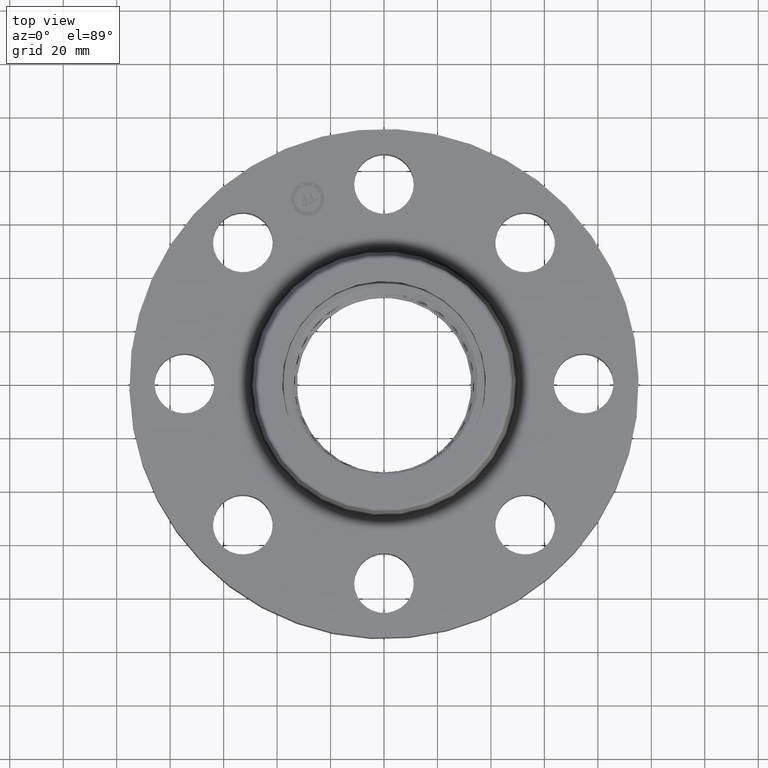
[diagram: clean part render]
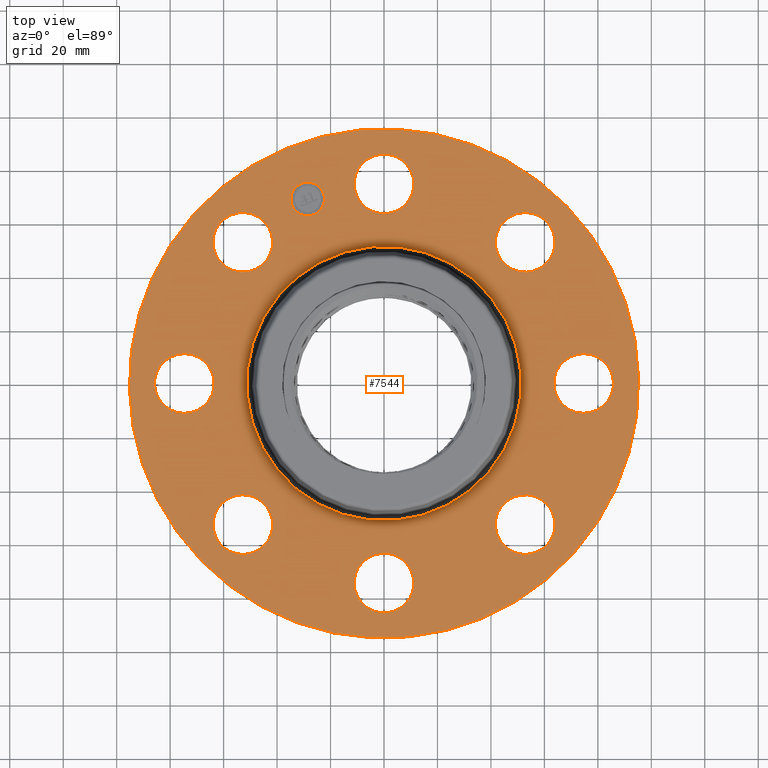
[diagram: same view with one face highlighted and labeled with its STEP entity id]
A machine part, top view. The second image highlights one B-rep face of the part: STEP entity #7544.
In plain terms, the highlighted planar face has unit normal (0, 0, -1).
Its self-contained STEP definition (entity closure, byte-faithful):
#433=AXIS2_PLACEMENT_3D('Circle Axis2P3D',#431,#432,$) ;
#451=AXIS2_PLACEMENT_3D('Circle Axis2P3D',#449,#450,$) ;
#498=AXIS2_PLACEMENT_3D('Circle Axis2P3D',#496,#497,$) ;
#516=AXIS2_PLACEMENT_3D('Circle Axis2P3D',#514,#515,$) ;
#563=AXIS2_PLACEMENT_3D('Circle Axis2P3D',#561,#562,$) ;
#581=AXIS2_PLACEMENT_3D('Circle Axis2P3D',#579,#580,$) ;
#628=AXIS2_PLACEMENT_3D('Circle Axis2P3D',#626,#627,$) ;
#646=AXIS2_PLACEMENT_3D('Circle Axis2P3D',#644,#645,$) ;
#693=AXIS2_PLACEMENT_3D('Circle Axis2P3D',#691,#692,$) ;
#711=AXIS2_PLACEMENT_3D('Circle Axis2P3D',#709,#710,$) ;
#758=AXIS2_PLACEMENT_3D('Circle Axis2P3D',#756,#757,$) ;
#776=AXIS2_PLACEMENT_3D('Circle Axis2P3D',#774,#775,$) ;
#823=AXIS2_PLACEMENT_3D('Circle Axis2P3D',#821,#822,$) ;
#841=AXIS2_PLACEMENT_3D('Circle Axis2P3D',#839,#840,$) ;
#1130=AXIS2_PLACEMENT_3D('Circle Axis2P3D',#1128,#1129,$) ;
#1156=AXIS2_PLACEMENT_3D('Circle Axis2P3D',#1154,#1155,$) ;
#1180=AXIS2_PLACEMENT_3D('Circle Axis2P3D',#1178,#1179,$) ;
#1199=AXIS2_PLACEMENT_3D('Circle Axis2P3D',#1197,#1198,$) ;
#1230=AXIS2_PLACEMENT_3D('Circle Axis2P3D',#1228,#1229,$) ;
#1243=AXIS2_PLACEMENT_3D('Circle Axis2P3D',#1241,#1242,$) ;
#7484=AXIS2_PLACEMENT_3D('Plane Axis2P3D',#7481,#7482,#7483) ;
#7528=AXIS2_PLACEMENT_3D('Circle Axis2P3D',#7526,#7527,$) ;
#7537=AXIS2_PLACEMENT_3D('Circle Axis2P3D',#7535,#7536,$) ;
#407=CARTESIAN_POINT('Vertex',(2.72905276303,-0.386136327233,1.12)) ;
#428=CARTESIAN_POINT('Vertex',(3.150947237,0.386136327233,1.12)) ;
#431=CARTESIAN_POINT('Axis2P3D Location',(2.94000000001,-3.79459389627E-016,1.12)) ;
#449=CARTESIAN_POINT('Axis2P3D Location',(2.94000000001,-3.79459389627E-016,1.12)) ;
#472=CARTESIAN_POINT('Vertex',(-2.2027713304,-1.6566920995,1.12)) ;
#493=CARTESIAN_POINT('Vertex',(-1.95501654299,-2.50109577389,1.12)) ;
#496=CARTESIAN_POINT('Axis2P3D Location',(-2.0788939367,-2.0788939367,1.12)) ;
#514=CARTESIAN_POINT('Axis2P3D Location',(-2.0788939367,-2.0788939367,1.12)) ;
#537=CARTESIAN_POINT('Vertex',(-2.72905276303,0.386136327233,1.12)) ;
#558=CARTESIAN_POINT('Vertex',(-3.150947237,-0.386136327233,1.12)) ;
#561=CARTESIAN_POINT('Axis2P3D Location',(-2.94000000001,-5.40069238426E-016,1.12)) ;
#579=CARTESIAN_POINT('Axis2P3D Location',(-2.94000000001,-5.40069238426E-016,1.12)) ;
#602=CARTESIAN_POINT('Vertex',(2.2027713304,1.6566920995,1.12)) ;
#623=CARTESIAN_POINT('Vertex',(1.95501654299,2.50109577389,1.12)) ;
#626=CARTESIAN_POINT('Axis2P3D Location',(2.0788939367,2.0788939367,1.12)) ;
#644=CARTESIAN_POINT('Axis2P3D Location',(2.0788939367,2.0788939367,1.12)) ;
#667=CARTESIAN_POINT('Vertex',(1.6566920995,-2.2027713304,1.12)) ;
#688=CARTESIAN_POINT('Vertex',(2.50109577389,-1.95501654299,1.12)) ;
#691=CARTESIAN_POINT('Axis2P3D Location',(2.0788939367,-2.0788939367,1.12)) ;
#709=CARTESIAN_POINT('Axis2P3D Location',(2.0788939367,-2.0788939367,1.12)) ;
#732=CARTESIAN_POINT('Vertex',(-1.6566920995,2.2027713304,1.12)) ;
#753=CARTESIAN_POINT('Vertex',(-2.50109577389,1.95501654299,1.12)) ;
#756=CARTESIAN_POINT('Axis2P3D Location',(-2.0788939367,2.0788939367,1.12)) ;
#774=CARTESIAN_POINT('Axis2P3D Location',(-2.0788939367,2.0788939367,1.12)) ;
#797=CARTESIAN_POINT('Vertex',(-0.386136327233,-2.72905276303,1.12)) ;
#818=CARTESIAN_POINT('Vertex',(0.386136327233,-3.150947237,1.12)) ;
#821=CARTESIAN_POINT('Axis2P3D Location',(3.60046158951E-016,-2.94000000001,1.12)) ;
#839=CARTESIAN_POINT('Axis2P3D Location',(3.60046158951E-016,-2.94000000001,1.12)) ;
#1128=CARTESIAN_POINT('Axis2P3D Location',(0.,0.,1.12)) ;
#1132=CARTESIAN_POINT('Vertex',(-0.968605458611,-1.77302039917,1.12)) ;
#1134=CARTESIAN_POINT('Vertex',(0.968605458611,1.77302039917,1.12)) ;
#1154=CARTESIAN_POINT('Axis2P3D Location',(0.,0.,1.12)) ;
#1175=CARTESIAN_POINT('Vertex',(1.79784576977,3.2909346071,1.12)) ;
#1178=CARTESIAN_POINT('Axis2P3D Location',(0.,0.,1.12)) ;
#1182=CARTESIAN_POINT('Vertex',(-1.79784576977,-3.2909346071,1.12)) ;
#1197=CARTESIAN_POINT('Axis2P3D Location',(0.,0.,1.12)) ;
#1218=CARTESIAN_POINT('Vertex',(0.386136327233,2.72905276303,1.12)) ;
#1225=CARTESIAN_POINT('Vertex',(-0.386136327233,3.150947237,1.12)) ;
#1228=CARTESIAN_POINT('Axis2P3D Location',(0.,2.94000000001,1.12)) ;
#1241=CARTESIAN_POINT('Axis2P3D Location',(0.,2.94000000001,1.12)) ;
#7481=CARTESIAN_POINT('Axis2P3D Location',(0.,3.75000000001,1.12)) ;
#7526=CARTESIAN_POINT('Axis2P3D Location',(-1.12508929116,2.71620582559,1.12)) ;
#7530=CARTESIAN_POINT('Vertex',(-1.35374947546,2.62149167608,1.12)) ;
#7532=CARTESIAN_POINT('Vertex',(-0.89642910686,2.8109199751,1.12)) ;
#7535=CARTESIAN_POINT('Axis2P3D Location',(-1.12508929116,2.71620582559,1.12)) ;
#432=DIRECTION('Axis2P3D Direction',(0.,-0.,-0.0393700787402)) ;
#450=DIRECTION('Axis2P3D Direction',(0.,-0.,-0.0393700787402)) ;
#497=DIRECTION('Axis2P3D Direction',(0.,0.,-0.0393700787402)) ;
#515=DIRECTION('Axis2P3D Direction',(0.,0.,-0.0393700787402)) ;
#562=DIRECTION('Axis2P3D Direction',(0.,0.,-0.0393700787402)) ;
#580=DIRECTION('Axis2P3D Direction',(0.,0.,-0.0393700787402)) ;
#627=DIRECTION('Axis2P3D Direction',(0.,-0.,-0.0393700787402)) ;
#645=DIRECTION('Axis2P3D Direction',(0.,-0.,-0.0393700787402)) ;
#692=DIRECTION('Axis2P3D Direction',(-0.,0.,-0.0393700787402)) ;
#710=DIRECTION('Axis2P3D Direction',(-0.,0.,-0.0393700787402)) ;
#757=DIRECTION('Axis2P3D Direction',(0.,0.,-0.0393700787402)) ;
#775=DIRECTION('Axis2P3D Direction',(0.,0.,-0.0393700787402)) ;
#822=DIRECTION('Axis2P3D Direction',(-0.,0.,-0.0393700787402)) ;
#840=DIRECTION('Axis2P3D Direction',(-0.,0.,-0.0393700787402)) ;
#1129=DIRECTION('Axis2P3D Direction',(0.,0.,-0.0393700787402)) ;
#1155=DIRECTION('Axis2P3D Direction',(0.,0.,-0.0393700787402)) ;
#1179=DIRECTION('Axis2P3D Direction',(0.,0.,-0.0393700787402)) ;
#1198=DIRECTION('Axis2P3D Direction',(0.,0.,-0.0393700787402)) ;
#1229=DIRECTION('Axis2P3D Direction',(0.,-0.,-0.0393700787402)) ;
#1242=DIRECTION('Axis2P3D Direction',(0.,-0.,-0.0393700787402)) ;
#7482=DIRECTION('Axis2P3D Direction',(0.,0.,-0.0393700787402)) ;
#7483=DIRECTION('Axis2P3D XDirection',(0.0393700787402,0.,0.)) ;
#7527=DIRECTION('Axis2P3D Direction',(0.,0.,-0.0393700787402)) ;
#7536=DIRECTION('Axis2P3D Direction',(0.,0.,-0.0393700787402)) ;
#7487=ORIENTED_EDGE('',*,*,#1184,.F.) ;
#7488=ORIENTED_EDGE('',*,*,#1201,.F.) ;
#7491=ORIENTED_EDGE('',*,*,#1245,.T.) ;
#7492=ORIENTED_EDGE('',*,*,#1232,.T.) ;
#7495=ORIENTED_EDGE('',*,*,#1136,.T.) ;
#7496=ORIENTED_EDGE('',*,*,#1158,.T.) ;
#7499=ORIENTED_EDGE('',*,*,#630,.T.) ;
#7500=ORIENTED_EDGE('',*,*,#648,.T.) ;
#7503=ORIENTED_EDGE('',*,*,#435,.T.) ;
#7504=ORIENTED_EDGE('',*,*,#453,.T.) ;
#7507=ORIENTED_EDGE('',*,*,#695,.T.) ;
#7508=ORIENTED_EDGE('',*,*,#713,.T.) ;
#7511=ORIENTED_EDGE('',*,*,#825,.T.) ;
#7512=ORIENTED_EDGE('',*,*,#843,.T.) ;
#7515=ORIENTED_EDGE('',*,*,#500,.T.) ;
#7516=ORIENTED_EDGE('',*,*,#518,.T.) ;
#7519=ORIENTED_EDGE('',*,*,#565,.T.) ;
#7520=ORIENTED_EDGE('',*,*,#583,.T.) ;
#7523=ORIENTED_EDGE('',*,*,#760,.T.) ;
#7524=ORIENTED_EDGE('',*,*,#778,.T.) ;
#7541=ORIENTED_EDGE('',*,*,#7534,.T.) ;
#7542=ORIENTED_EDGE('',*,*,#7539,.T.) ;
#7493=FACE_BOUND('',#7490,.T.) ;
#7497=FACE_BOUND('',#7494,.T.) ;
#7501=FACE_BOUND('',#7498,.T.) ;
#7505=FACE_BOUND('',#7502,.T.) ;
#7509=FACE_BOUND('',#7506,.T.) ;
#7513=FACE_BOUND('',#7510,.T.) ;
#7517=FACE_BOUND('',#7514,.T.) ;
#7521=FACE_BOUND('',#7518,.T.) ;
#7525=FACE_BOUND('',#7522,.T.) ;
#7543=FACE_BOUND('',#7540,.T.) ;
#7544=ADVANCED_FACE('PartBody',(#7489,#7493,#7497,#7501,#7505,#7509,#7513,#7517,#7521,#7525,#7543),#7485,.F.) ;
#434=CIRCLE('generated circle',#433,0.440000000002) ;
#452=CIRCLE('generated circle',#451,0.440000000002) ;
#499=CIRCLE('generated circle',#498,0.440000000002) ;
#517=CIRCLE('generated circle',#516,0.440000000002) ;
#564=CIRCLE('generated circle',#563,0.440000000002) ;
#582=CIRCLE('generated circle',#581,0.440000000002) ;
#629=CIRCLE('generated circle',#628,0.440000000002) ;
#647=CIRCLE('generated circle',#646,0.440000000002) ;
#694=CIRCLE('generated circle',#693,0.440000000002) ;
#712=CIRCLE('generated circle',#711,0.440000000002) ;
#759=CIRCLE('generated circle',#758,0.440000000002) ;
#777=CIRCLE('generated circle',#776,0.440000000002) ;
#824=CIRCLE('generated circle',#823,0.440000000002) ;
#842=CIRCLE('generated circle',#841,0.440000000002) ;
#1131=CIRCLE('generated circle',#1130,2.02034597788) ;
#1157=CIRCLE('generated circle',#1156,2.02034597788) ;
#1181=CIRCLE('generated circle',#1180,3.75000000002) ;
#1200=CIRCLE('generated circle',#1199,3.75000000002) ;
#1231=CIRCLE('generated circle',#1230,0.440000000002) ;
#1244=CIRCLE('generated circle',#1243,0.440000000002) ;
#7529=CIRCLE('generated circle',#7528,0.247500000001) ;
#7538=CIRCLE('generated circle',#7537,0.247500000001) ;
#435=EDGE_CURVE('',#408,#429,#434,.T.) ;
#453=EDGE_CURVE('',#429,#408,#452,.T.) ;
#500=EDGE_CURVE('',#473,#494,#499,.T.) ;
#518=EDGE_CURVE('',#494,#473,#517,.T.) ;
#565=EDGE_CURVE('',#538,#559,#564,.T.) ;
#583=EDGE_CURVE('',#559,#538,#582,.T.) ;
#630=EDGE_CURVE('',#603,#624,#629,.T.) ;
#648=EDGE_CURVE('',#624,#603,#647,.T.) ;
#695=EDGE_CURVE('',#668,#689,#694,.T.) ;
#713=EDGE_CURVE('',#689,#668,#712,.T.) ;
#760=EDGE_CURVE('',#733,#754,#759,.T.) ;
#778=EDGE_CURVE('',#754,#733,#777,.T.) ;
#825=EDGE_CURVE('',#798,#819,#824,.T.) ;
#843=EDGE_CURVE('',#819,#798,#842,.T.) ;
#1136=EDGE_CURVE('',#1133,#1135,#1131,.T.) ;
#1158=EDGE_CURVE('',#1135,#1133,#1157,.T.) ;
#1184=EDGE_CURVE('',#1176,#1183,#1181,.T.) ;
#1201=EDGE_CURVE('',#1183,#1176,#1200,.T.) ;
#1232=EDGE_CURVE('',#1219,#1226,#1231,.T.) ;
#1245=EDGE_CURVE('',#1226,#1219,#1244,.T.) ;
#7534=EDGE_CURVE('',#7531,#7533,#7529,.T.) ;
#7539=EDGE_CURVE('',#7533,#7531,#7538,.T.) ;
#7486=EDGE_LOOP('',(#7487,#7488)) ;
#7490=EDGE_LOOP('',(#7491,#7492)) ;
#7494=EDGE_LOOP('',(#7495,#7496)) ;
#7498=EDGE_LOOP('',(#7499,#7500)) ;
#7502=EDGE_LOOP('',(#7503,#7504)) ;
#7506=EDGE_LOOP('',(#7507,#7508)) ;
#7510=EDGE_LOOP('',(#7511,#7512)) ;
#7514=EDGE_LOOP('',(#7515,#7516)) ;
#7518=EDGE_LOOP('',(#7519,#7520)) ;
#7522=EDGE_LOOP('',(#7523,#7524)) ;
#7540=EDGE_LOOP('',(#7541,#7542)) ;
#7489=FACE_OUTER_BOUND('',#7486,.T.) ;
#7485=PLANE('',#7484) ;
#408=VERTEX_POINT('',#407) ;
#429=VERTEX_POINT('',#428) ;
#473=VERTEX_POINT('',#472) ;
#494=VERTEX_POINT('',#493) ;
#538=VERTEX_POINT('',#537) ;
#559=VERTEX_POINT('',#558) ;
#603=VERTEX_POINT('',#602) ;
#624=VERTEX_POINT('',#623) ;
#668=VERTEX_POINT('',#667) ;
#689=VERTEX_POINT('',#688) ;
#733=VERTEX_POINT('',#732) ;
#754=VERTEX_POINT('',#753) ;
#798=VERTEX_POINT('',#797) ;
#819=VERTEX_POINT('',#818) ;
#1133=VERTEX_POINT('',#1132) ;
#1135=VERTEX_POINT('',#1134) ;
#1176=VERTEX_POINT('',#1175) ;
#1183=VERTEX_POINT('',#1182) ;
#1219=VERTEX_POINT('',#1218) ;
#1226=VERTEX_POINT('',#1225) ;
#7531=VERTEX_POINT('',#7530) ;
#7533=VERTEX_POINT('',#7532) ;